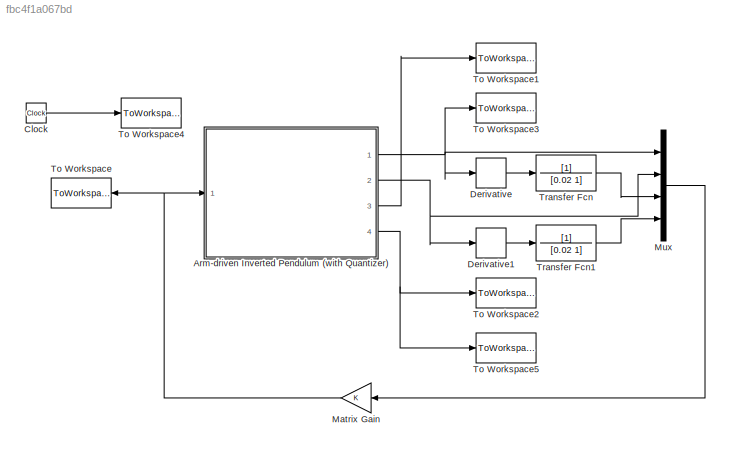
MODEL slx_fbc4f1a067bd
KIND model
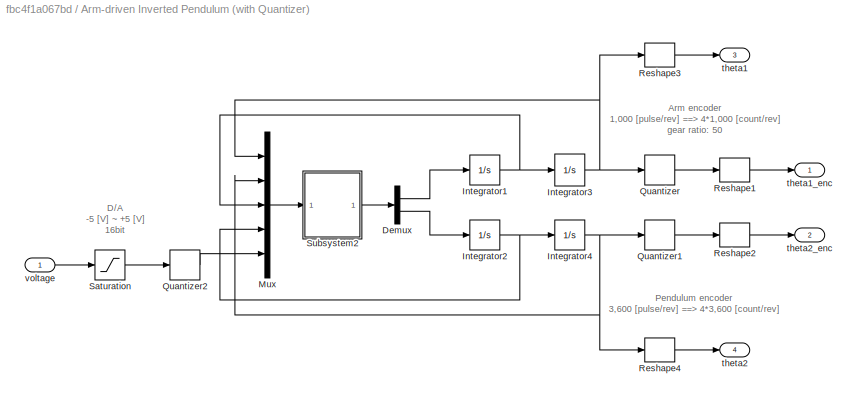
BLOCK [SubSystem] Arm-driven Inverted Pendulum (with Quantizer)
  FunctionWithSeparateData = off
  MaskHideContents = off
  MinAlgLoopOccurrences = off
  Opaque = off
  Ports = [1, 4]
  PropExecContextOutsideSubsystem = off
  RTWSystemCode = Auto
  RequestExecContextInheritance = off
BLOCK [Demux] Arm-driven Inverted Pendulum (with Quantizer)/Demux
  DisplayOption = bar
  Outputs = 2
  Ports = [1, 2]
BLOCK [Integrator] Arm-driven Inverted Pendulum (with Quantizer)/Integrator1
  InitialCondition = dtheta1_0
  Ports = [1, 1]
BLOCK [Integrator] Arm-driven Inverted Pendulum (with Quantizer)/Integrator2
  InitialCondition = dtheta2_0
  Ports = [1, 1]
BLOCK [Integrator] Arm-driven Inverted Pendulum (with Quantizer)/Integrator3
  InitialCondition = theta1_0
  Ports = [1, 1]
BLOCK [Integrator] Arm-driven Inverted Pendulum (with Quantizer)/Integrator4
  InitialCondition = theta2_0
  Ports = [1, 1]
BLOCK [Mux] Arm-driven Inverted Pendulum (with Quantizer)/Mux
  DisplayOption = bar
  Inputs = 5
  Ports = [5, 1]
BLOCK [Quantizer] Arm-driven Inverted Pendulum (with Quantizer)/Quantizer
  QuantizationInterval = 2*pi/(4*1000*50)
BLOCK [Quantizer] Arm-driven Inverted Pendulum (with Quantizer)/Quantizer1
  QuantizationInterval = 2*pi/(4*3600)
BLOCK [Quantizer] Arm-driven Inverted Pendulum (with Quantizer)/Quantizer2
  QuantizationInterval = 10/2^(16)
BLOCK [Reshape] Arm-driven Inverted Pendulum (with Quantizer)/Reshape1
  Ports = [1, 1]
BLOCK [Reshape] Arm-driven Inverted Pendulum (with Quantizer)/Reshape2
  Ports = [1, 1]
BLOCK [Reshape] Arm-driven Inverted Pendulum (with Quantizer)/Reshape3
  Ports = [1, 1]
BLOCK [Reshape] Arm-driven Inverted Pendulum (with Quantizer)/Reshape4
  Ports = [1, 1]
BLOCK [Saturate] Arm-driven Inverted Pendulum (with Quantizer)/Saturation
  InputPortMap = u0
  LowerLimit = -5
  Ports = [1, 1]
  UpperLimit = 5
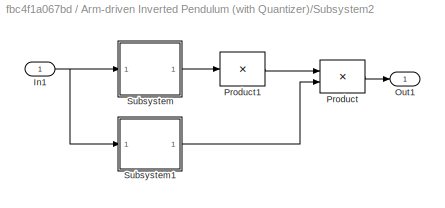
BLOCK [SubSystem] Arm-driven Inverted Pendulum (with Quantizer)/Subsystem2
  FunctionWithSeparateData = off
  MaskHideContents = off
  MinAlgLoopOccurrences = off
  Opaque = off
  Ports = [1, 1]
  PropExecContextOutsideSubsystem = off
  RTWSystemCode = Auto
  RequestExecContextInheritance = off
BLOCK [Inport] Arm-driven Inverted Pendulum (with Quantizer)/Subsystem2/In1
  IconDisplay = Port number
BLOCK [Outport] Arm-driven Inverted Pendulum (with Quantizer)/Subsystem2/Out1
  IconDisplay = Port number
BLOCK [Product] Arm-driven Inverted Pendulum (with Quantizer)/Subsystem2/Product
  Multiplication = Matrix(*)
  Ports = [2, 1]
  RndMeth = Floor
BLOCK [Product] Arm-driven Inverted Pendulum (with Quantizer)/Subsystem2/Product1
  Inputs = /
  Multiplication = Matrix(*)
  Ports = [1, 1]
  RndMeth = Floor
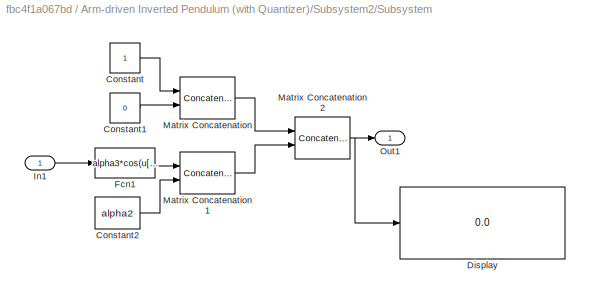
BLOCK [SubSystem] Arm-driven Inverted Pendulum (with Quantizer)/Subsystem2/Subsystem
  FunctionWithSeparateData = off
  MaskHideContents = off
  MinAlgLoopOccurrences = off
  Opaque = off
  Ports = [1, 1]
  PropExecContextOutsideSubsystem = off
  RTWSystemCode = Auto
  RequestExecContextInheritance = off
BLOCK [Constant] Arm-driven Inverted Pendulum (with Quantizer)/Subsystem2/Subsystem/Constant
BLOCK [Constant] Arm-driven Inverted Pendulum (with Quantizer)/Subsystem2/Subsystem/Constant1
  Value = 0
BLOCK [Constant] Arm-driven Inverted Pendulum (with Quantizer)/Subsystem2/Subsystem/Constant2
  Value = alpha2
BLOCK [Display] Arm-driven Inverted Pendulum (with Quantizer)/Subsystem2/Subsystem/Display
  Decimation = 1
  Lockdown = off
  Ports = [1]
BLOCK [Fcn] Arm-driven Inverted Pendulum (with Quantizer)/Subsystem2/Subsystem/Fcn1
  Expr = alpha3*cos(u[1] - u[2])
BLOCK [Inport] Arm-driven Inverted Pendulum (with Quantizer)/Subsystem2/Subsystem/In1
  IconDisplay = Port number
BLOCK [Concatenate] Arm-driven Inverted Pendulum (with Quantizer)/Subsystem2/Subsystem/Matrix Concatenation
  ConcatenateDimension = 2
  Mode = Multidimensional array
  Ports = [2, 1]
BLOCK [Concatenate] Arm-driven Inverted Pendulum (with Quantizer)/Subsystem2/Subsystem/Matrix Concatenation1
  ConcatenateDimension = 2
  Mode = Multidimensional array
  Ports = [2, 1]
BLOCK [Concatenate] Arm-driven Inverted Pendulum (with Quantizer)/Subsystem2/Subsystem/Matrix Concatenation2
  Mode = Multidimensional array
  Ports = [2, 1]
BLOCK [Outport] Arm-driven Inverted Pendulum (with Quantizer)/Subsystem2/Subsystem/Out1
  IconDisplay = Port number
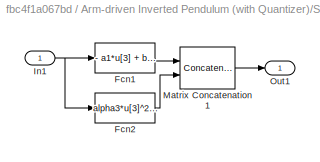
BLOCK [SubSystem] Arm-driven Inverted Pendulum (with Quantizer)/Subsystem2/Subsystem1
  FunctionWithSeparateData = off
  MaskHideContents = off
  MinAlgLoopOccurrences = off
  Opaque = off
  Ports = [1, 1]
  PropExecContextOutsideSubsystem = off
  RTWSystemCode = Auto
  RequestExecContextInheritance = off
BLOCK [Fcn] Arm-driven Inverted Pendulum (with Quantizer)/Subsystem2/Subsystem1/Fcn1
  Expr = - a1*u[3] + b1*u[5]
BLOCK [Fcn] Arm-driven Inverted Pendulum (with Quantizer)/Subsystem2/Subsystem1/Fcn2
  Expr = alpha3*u[3]^2*sin(u[1] - u[2]) + alpha5*sin(u[2]) + mu2*u[3] - mu2*u[4]
BLOCK [Inport] Arm-driven Inverted Pendulum (with Quantizer)/Subsystem2/Subsystem1/In1
  IconDisplay = Port number
BLOCK [Concatenate] Arm-driven Inverted Pendulum (with Quantizer)/Subsystem2/Subsystem1/Matrix Concatenation1
  Mode = Multidimensional array
  Ports = [2, 1]
BLOCK [Outport] Arm-driven Inverted Pendulum (with Quantizer)/Subsystem2/Subsystem1/Out1
  IconDisplay = Port number
BLOCK [Outport] Arm-driven Inverted Pendulum (with Quantizer)/theta1
  IconDisplay = Port number
  Port = 3
BLOCK [Outport] Arm-driven Inverted Pendulum (with Quantizer)/theta1_enc
  IconDisplay = Port number
BLOCK [Outport] Arm-driven Inverted Pendulum (with Quantizer)/theta2
  IconDisplay = Port number
  Port = 4
BLOCK [Outport] Arm-driven Inverted Pendulum (with Quantizer)/theta2_enc
  IconDisplay = Port number
  Port = 2
BLOCK [Inport] Arm-driven Inverted Pendulum (with Quantizer)/voltage
  IconDisplay = Port number
BLOCK [Clock] Clock
BLOCK [Derivative] Derivative
BLOCK [Derivative] Derivative1
BLOCK [Gain] Matrix Gain
  Gain = K
  Multiplication = Matrix(K*u)
BLOCK [Mux] Mux
  DisplayOption = bar
  Ports = [4, 1]
BLOCK [ToWorkspace] To Workspace
  MaxDataPoints = inf
  Ports = [1]
  SampleTime = -1
  VariableName = u
BLOCK [ToWorkspace] To Workspace1
  MaxDataPoints = inf
  Ports = [1]
  SampleTime = -1
  VariableName = theta1
BLOCK [ToWorkspace] To Workspace2
  MaxDataPoints = inf
  Ports = [1]
  SampleTime = -1
  VariableName = theta2
BLOCK [ToWorkspace] To Workspace3
  MaxDataPoints = inf
  Ports = [1]
  SampleTime = -1
  VariableName = theta1_enc
BLOCK [ToWorkspace] To Workspace4
  MaxDataPoints = inf
  Ports = [1]
  SampleTime = -1
  VariableName = t
BLOCK [ToWorkspace] To Workspace5
  MaxDataPoints = inf
  Ports = [1]
  SampleTime = -1
  VariableName = theta2_enc
BLOCK [TransferFcn] Transfer Fcn
  Denominator = [0.02 1]
BLOCK [TransferFcn] Transfer Fcn1
  Denominator = [0.02 1]
ANNOTATION Arm-driven Inverted Pendulum (with Quantizer): Arm encoder 1,000 [pulse/rev] ==> 4*1,000 [count/rev] gear ratio: 50
ANNOTATION Arm-driven Inverted Pendulum (with Quantizer): D/A -5 [V] ~ +5 [V] 16bit
ANNOTATION Arm-driven Inverted Pendulum (with Quantizer): Pendulum encoder 3,600 [pulse/rev] ==> 4*3,600 [count/rev]
LINE Arm-driven Inverted Pendulum (with Quantizer)/Demux:1 -> Arm-driven Inverted Pendulum (with Quantizer)/Integrator1:1
LINE Arm-driven Inverted Pendulum (with Quantizer)/Demux:2 -> Arm-driven Inverted Pendulum (with Quantizer)/Integrator2:1
NET Arm-driven Inverted Pendulum (with Quantizer)/Integrator1:1 -> Arm-driven Inverted Pendulum (with Quantizer)/Integrator3:1, Arm-driven Inverted Pendulum (with Quantizer)/Mux:3
NET Arm-driven Inverted Pendulum (with Quantizer)/Integrator2:1 -> Arm-driven Inverted Pendulum (with Quantizer)/Integrator4:1, Arm-driven Inverted Pendulum (with Quantizer)/Mux:4
NET Arm-driven Inverted Pendulum (with Quantizer)/Integrator3:1 -> Arm-driven Inverted Pendulum (with Quantizer)/Mux:1, Arm-driven Inverted Pendulum (with Quantizer)/Quantizer:1, Arm-driven Inverted Pendulum (with Quantizer)/Reshape3:1
NET Arm-driven Inverted Pendulum (with Quantizer)/Integrator4:1 -> Arm-driven Inverted Pendulum (with Quantizer)/Mux:2, Arm-driven Inverted Pendulum (with Quantizer)/Quantizer1:1, Arm-driven Inverted Pendulum (with Quantizer)/Reshape4:1
LINE Arm-driven Inverted Pendulum (with Quantizer)/Mux:1 -> Arm-driven Inverted Pendulum (with Quantizer)/Subsystem2:1
LINE Arm-driven Inverted Pendulum (with Quantizer)/Quantizer1:1 -> Arm-driven Inverted Pendulum (with Quantizer)/Reshape2:1
LINE Arm-driven Inverted Pendulum (with Quantizer)/Quantizer2:1 -> Arm-driven Inverted Pendulum (with Quantizer)/Mux:5
LINE Arm-driven Inverted Pendulum (with Quantizer)/Quantizer:1 -> Arm-driven Inverted Pendulum (with Quantizer)/Reshape1:1
LINE Arm-driven Inverted Pendulum (with Quantizer)/Reshape1:1 -> Arm-driven Inverted Pendulum (with Quantizer)/theta1_enc:1
LINE Arm-driven Inverted Pendulum (with Quantizer)/Reshape2:1 -> Arm-driven Inverted Pendulum (with Quantizer)/theta2_enc:1
LINE Arm-driven Inverted Pendulum (with Quantizer)/Reshape3:1 -> Arm-driven Inverted Pendulum (with Quantizer)/theta1:1
LINE Arm-driven Inverted Pendulum (with Quantizer)/Reshape4:1 -> Arm-driven Inverted Pendulum (with Quantizer)/theta2:1
LINE Arm-driven Inverted Pendulum (with Quantizer)/Saturation:1 -> Arm-driven Inverted Pendulum (with Quantizer)/Quantizer2:1
NET Arm-driven Inverted Pendulum (with Quantizer)/Subsystem2/In1:1 -> Arm-driven Inverted Pendulum (with Quantizer)/Subsystem2/Subsystem1:1, Arm-driven Inverted Pendulum (with Quantizer)/Subsystem2/Subsystem:1
LINE Arm-driven Inverted Pendulum (with Quantizer)/Subsystem2/Product1:1 -> Arm-driven Inverted Pendulum (with Quantizer)/Subsystem2/Product:1
LINE Arm-driven Inverted Pendulum (with Quantizer)/Subsystem2/Product:1 -> Arm-driven Inverted Pendulum (with Quantizer)/Subsystem2/Out1:1
LINE Arm-driven Inverted Pendulum (with Quantizer)/Subsystem2/Subsystem/Constant1:1 -> Arm-driven Inverted Pendulum (with Quantizer)/Subsystem2/Subsystem/Matrix Concatenation:2
LINE Arm-driven Inverted Pendulum (with Quantizer)/Subsystem2/Subsystem/Constant2:1 -> Arm-driven Inverted Pendulum (with Quantizer)/Subsystem2/Subsystem/Matrix Concatenation1:2
LINE Arm-driven Inverted Pendulum (with Quantizer)/Subsystem2/Subsystem/Constant:1 -> Arm-driven Inverted Pendulum (with Quantizer)/Subsystem2/Subsystem/Matrix Concatenation:1
LINE Arm-driven Inverted Pendulum (with Quantizer)/Subsystem2/Subsystem/Fcn1:1 -> Arm-driven Inverted Pendulum (with Quantizer)/Subsystem2/Subsystem/Matrix Concatenation1:1
LINE Arm-driven Inverted Pendulum (with Quantizer)/Subsystem2/Subsystem/In1:1 -> Arm-driven Inverted Pendulum (with Quantizer)/Subsystem2/Subsystem/Fcn1:1
LINE Arm-driven Inverted Pendulum (with Quantizer)/Subsystem2/Subsystem/Matrix Concatenation1:1 -> Arm-driven Inverted Pendulum (with Quantizer)/Subsystem2/Subsystem/Matrix Concatenation2:2
NET Arm-driven Inverted Pendulum (with Quantizer)/Subsystem2/Subsystem/Matrix Concatenation2:1 -> Arm-driven Inverted Pendulum (with Quantizer)/Subsystem2/Subsystem/Display:1, Arm-driven Inverted Pendulum (with Quantizer)/Subsystem2/Subsystem/Out1:1
LINE Arm-driven Inverted Pendulum (with Quantizer)/Subsystem2/Subsystem/Matrix Concatenation:1 -> Arm-driven Inverted Pendulum (with Quantizer)/Subsystem2/Subsystem/Matrix Concatenation2:1
LINE Arm-driven Inverted Pendulum (with Quantizer)/Subsystem2/Subsystem1/Fcn1:1 -> Arm-driven Inverted Pendulum (with Quantizer)/Subsystem2/Subsystem1/Matrix Concatenation1:1
LINE Arm-driven Inverted Pendulum (with Quantizer)/Subsystem2/Subsystem1/Fcn2:1 -> Arm-driven Inverted Pendulum (with Quantizer)/Subsystem2/Subsystem1/Matrix Concatenation1:2
NET Arm-driven Inverted Pendulum (with Quantizer)/Subsystem2/Subsystem1/In1:1 -> Arm-driven Inverted Pendulum (with Quantizer)/Subsystem2/Subsystem1/Fcn1:1, Arm-driven Inverted Pendulum (with Quantizer)/Subsystem2/Subsystem1/Fcn2:1
LINE Arm-driven Inverted Pendulum (with Quantizer)/Subsystem2/Subsystem1/Matrix Concatenation1:1 -> Arm-driven Inverted Pendulum (with Quantizer)/Subsystem2/Subsystem1/Out1:1
LINE Arm-driven Inverted Pendulum (with Quantizer)/Subsystem2/Subsystem1:1 -> Arm-driven Inverted Pendulum (with Quantizer)/Subsystem2/Product:2
LINE Arm-driven Inverted Pendulum (with Quantizer)/Subsystem2/Subsystem:1 -> Arm-driven Inverted Pendulum (with Quantizer)/Subsystem2/Product1:1
LINE Arm-driven Inverted Pendulum (with Quantizer)/Subsystem2:1 -> Arm-driven Inverted Pendulum (with Quantizer)/Demux:1
LINE Arm-driven Inverted Pendulum (with Quantizer)/voltage:1 -> Arm-driven Inverted Pendulum (with Quantizer)/Saturation:1
NET Arm-driven Inverted Pendulum (with Quantizer):1 -> Derivative:1, Mux:1, To Workspace3:1
NET Arm-driven Inverted Pendulum (with Quantizer):2 -> Derivative1:1, Mux:2
LINE Arm-driven Inverted Pendulum (with Quantizer):3 -> To Workspace1:1
NET Arm-driven Inverted Pendulum (with Quantizer):4 -> To Workspace2:1, To Workspace5:1
LINE Clock:1 -> To Workspace4:1
LINE Derivative1:1 -> Transfer Fcn1:1
LINE Derivative:1 -> Transfer Fcn:1
NET Matrix Gain:1 -> Arm-driven Inverted Pendulum (with Quantizer):1, To Workspace:1
LINE Mux:1 -> Matrix Gain:1
LINE Transfer Fcn1:1 -> Mux:4
LINE Transfer Fcn:1 -> Mux:3
note: NET lines group one-source signal fan-out (src -> all destinations, sorted); 1:1 wires keep LINE
